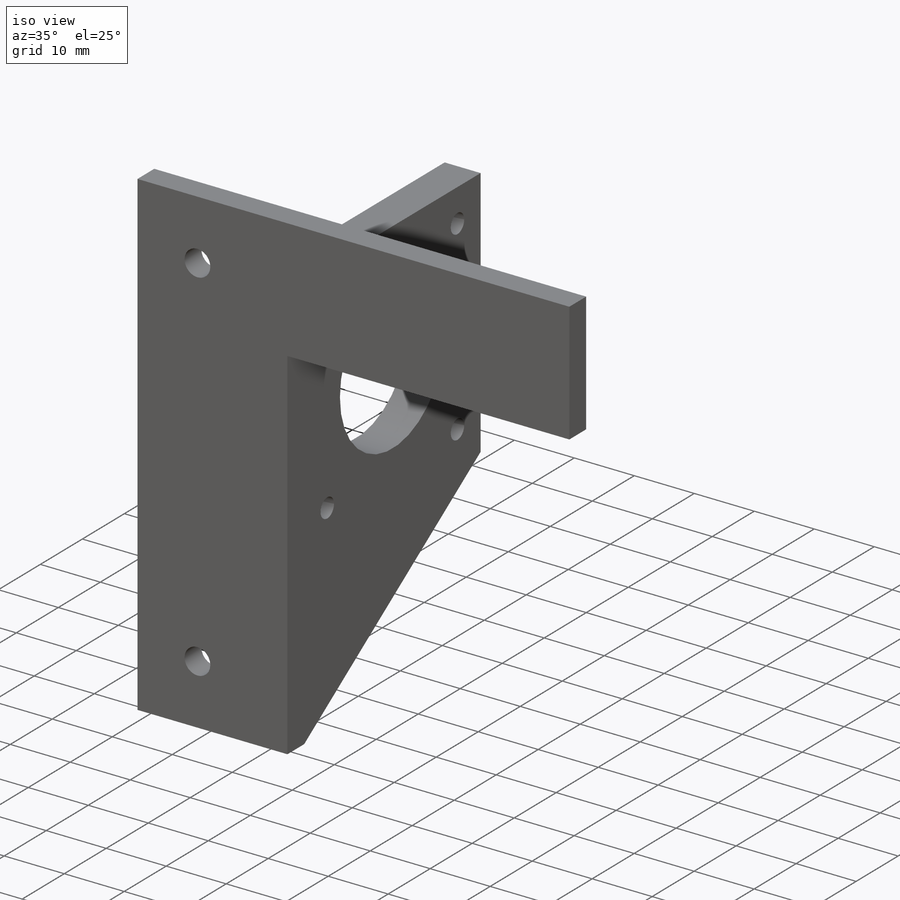
[diagram: iso view]
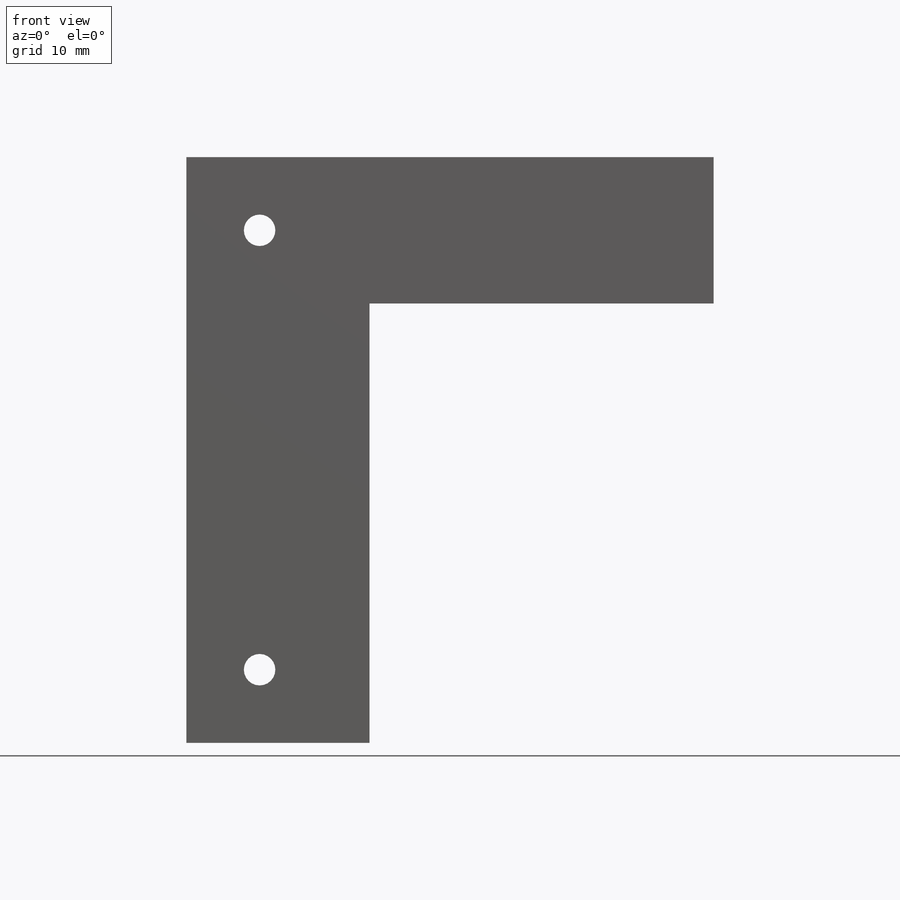
[diagram: front view]
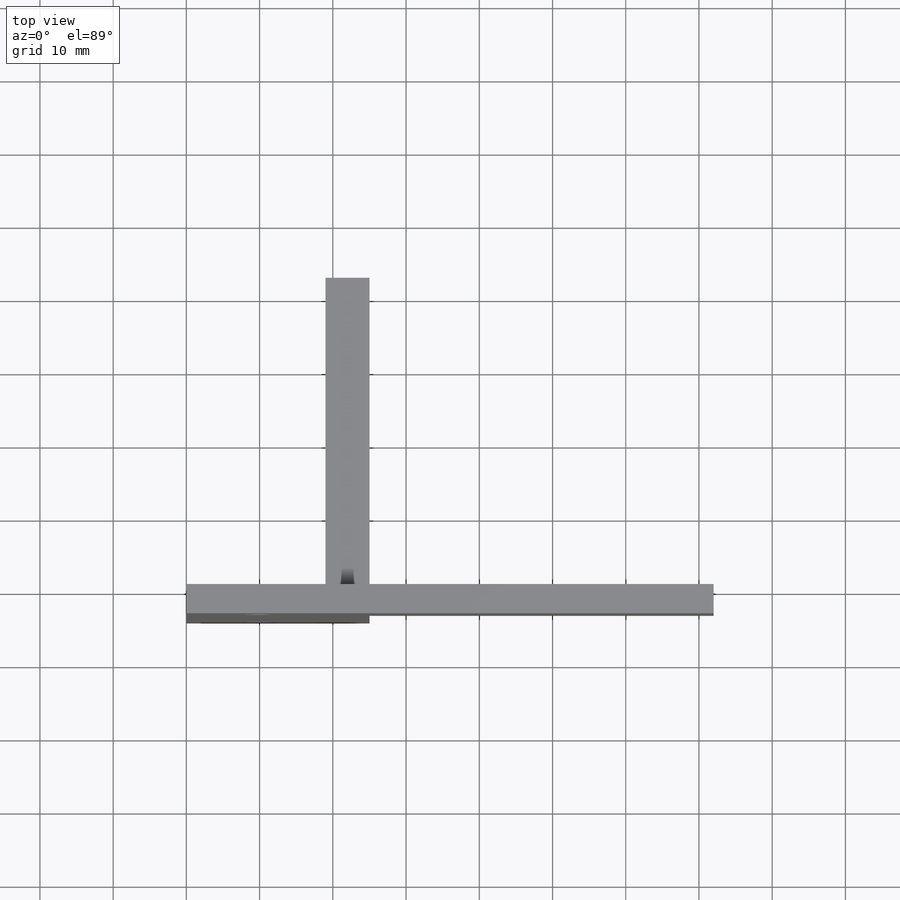
[diagram: top view]
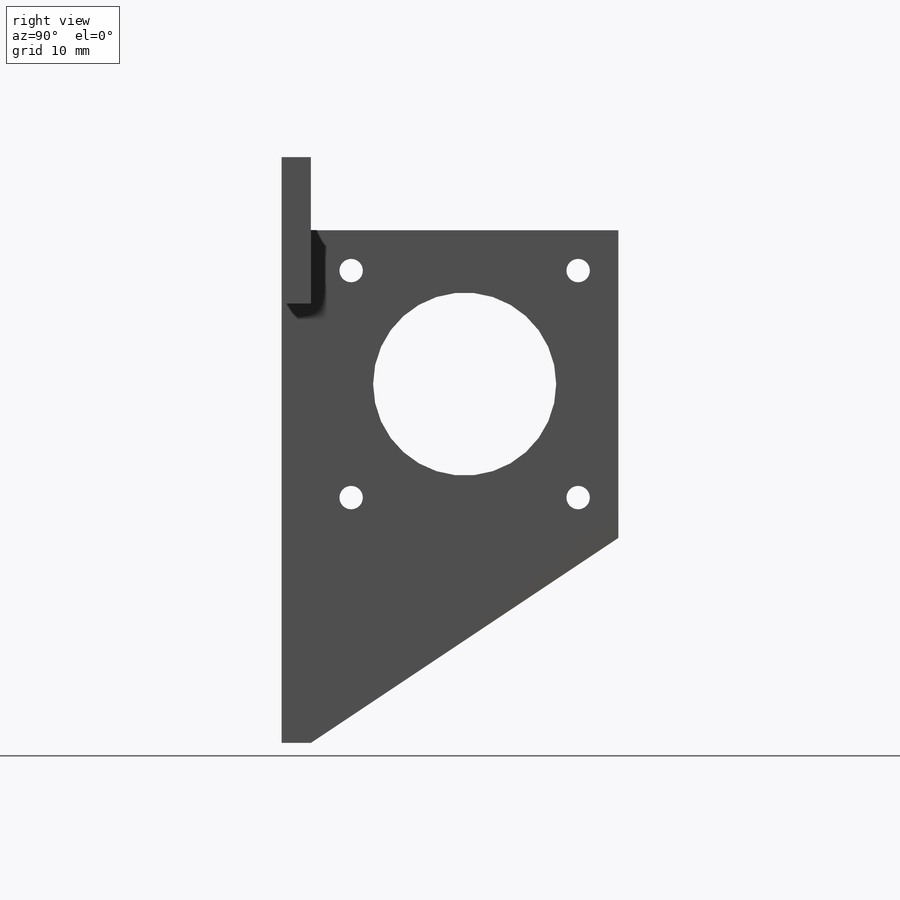
[diagram: right view]
SOLIDWORKS PART (.sldprt)
format: sldprt  version: not decoded by parser v0  size: 259,072 bytes
history: native  units: mm
features: sketch x6, plane x3, extrude x2, hole x2, chamfer x2, material x1, fillet x1 (+9 scaffold rows collapsed)
feature tree (26):
  scaffold x9  (default folders/planes/origin — collapsed)
  material  "Matériau <non spécifié>"
  plane  "Plan de face"
  plane  "Plan de dessus"
  plane  "Plan de droite"
  sketch  "Esquisse1"  dims[D1=80.0mm D2=25.0mm D3=58.0mm D4=58.0mm D5=20.0mm]
  extrude  "Boss.-Extru.1"  Depth=4mm
  sketch  "Esquisse3"  dims[c1.D4=~20.772805mm c1.D6=25.0mm c1.D1=42.0mm c1.D2=42.0mm c1.D3=70.0mm c2.D4=21.0mm c2.D5=21.0mm c2.D3=9.0mm]
  extrude  "Boss.-Extru.2"  Depth=6mm
  hole  "Dégagement M31"  Diameter=3.2mm Depth=25.000025mm
  sketch  "Esquisse5"  dims[c1.D1=5.5mm c1.D2=5.5mm c1.D3=5.5mm c1.D4=31.0mm c1.D5=31.0mm c2.D1=5.5mm c2.D2=5.5mm]
  sketch  "Esquisse4"  dims[hole-wizard template sketch: 59 standard entries collapsed; hole parameters kept: c18.Diamètre du perçage jusqu'au prochain=3.2mm c18.Profondeur du perçage jusqu'au prochain=~25.000025mm]
  hole  "Dégagement M41"  Diameter=4.3mm Depth=15mm
  sketch  "Esquisse7"  dims[c1.D1=10.0mm c1.D2=10.0mm c1.D3=10.0mm c1.D4=~14.833434mm c2.D4=90.0deg c3.D4=10.0mm c3.D5=6.0mm c3.D6=10.0mm]
  sketch  "Esquisse6"  dims[hole-wizard template sketch: 46 standard entries collapsed; hole parameters kept: c15.Diamètre du perçage=4.3mm c15.Profondeur du perçage=15.0mm c15.D3=~14.816244mm c15.Angle de pointe=180.0deg]
  fillet  "Congé1"  Radius=2mm
  chamfer  "Chanfrein1"  Distance=4mm Angle=45deg
  chamfer  "Congé2"  Distance=10mm
decode coverage: 13 of 13 modeling features carry decoded parameters
note: ~ marks probable driven/reference dimensions
note: suppression state not decoded; provenance and decode notes live in map.json
